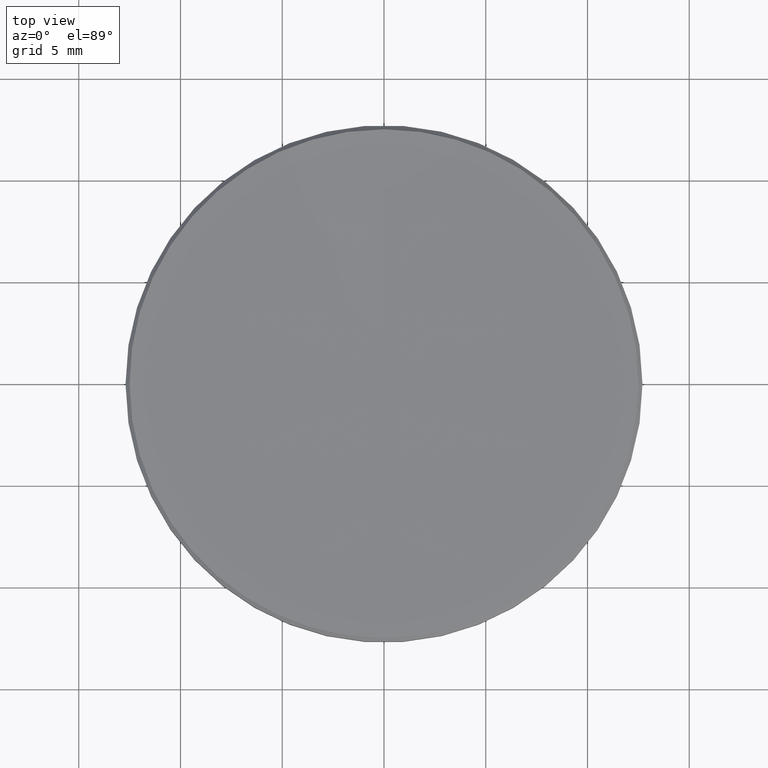
[diagram: clean part render]
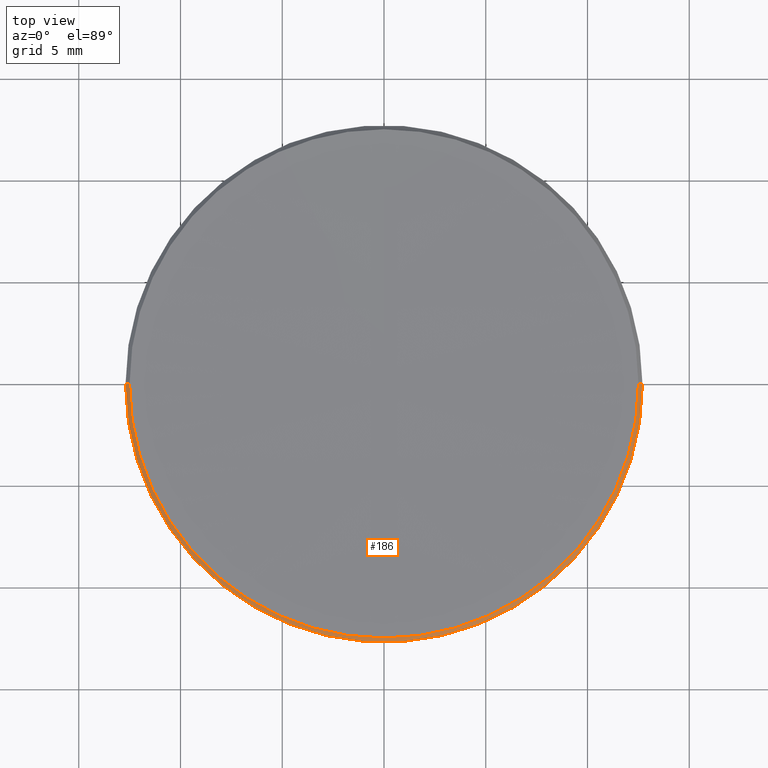
[diagram: same view with one face highlighted and labeled with its STEP entity id]
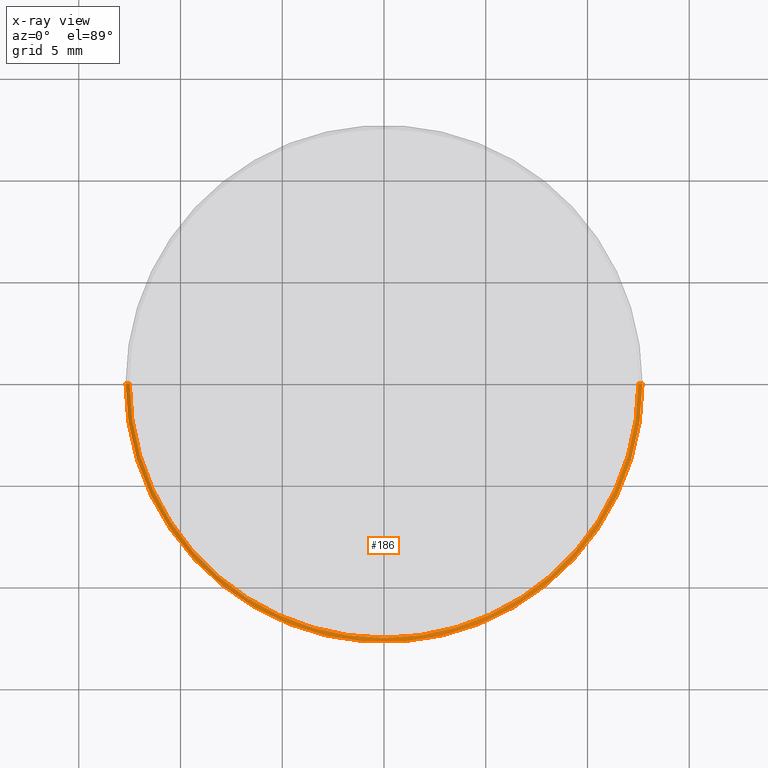
[diagram: x-ray of the same camera — body ghosted, the highlighted face saturated]
A machine part, top view. The second image highlights one B-rep face of the part: STEP entity #186.
The next image is the same camera in x-ray: the body ghosted, the highlighted face saturated — about 0% of this face is hidden behind the body in this view.
In plain terms, the highlighted conical surface has half-angle 45 deg.
Its self-contained STEP definition (entity closure, byte-faithful):
#1 = EDGE_LOOP ( 'NONE', ( #275, #233, #287, #98, #329 ) ) ;
#6 = EDGE_CURVE ( 'NONE', #70, #101, #99, .T. ) ;
#29 = AXIS2_PLACEMENT_3D ( 'NONE', #291, #39, #141 ) ;
#38 = AXIS2_PLACEMENT_3D ( 'NONE', #44, #146, #245 ) ;
#39 = DIRECTION ( 'NONE',  ( 0.000000000000000000, 0.000000000000000000, -1.000000000000000000 ) ) ;
#41 = CARTESIAN_POINT ( 'NONE',  ( -1.531023090019318822E-15, -12.50175226918713633, 5.998247730793604404 ) ) ;
#44 = CARTESIAN_POINT ( 'NONE',  ( 0.000000000000000000, 0.000000000000000000, 5.998247730793604404 ) ) ;
#54 = CARTESIAN_POINT ( 'NONE',  ( -12.69999999999999929, 0.000000000000000000, 5.800000000000471445 ) ) ;
#62 = CARTESIAN_POINT ( 'NONE',  ( 0.000000000000000000, 0.000000000000000000, 5.998247730793826449 ) ) ;
#67 = VERTEX_POINT ( 'NONE', #170 ) ;
#70 = VERTEX_POINT ( 'NONE', #165 ) ;
#78 = VERTEX_POINT ( 'NONE', #112 ) ;
#80 = EDGE_CURVE ( 'NONE', #67, #70, #288, .T. ) ;
#92 = FACE_OUTER_BOUND ( 'NONE', #1, .T. ) ;
#98 = ORIENTED_EDGE ( 'NONE', *, *, #190, .T. ) ;
#99 = CIRCLE ( 'NONE', #29, 12.69999999999999929 ) ;
#101 = VERTEX_POINT ( 'NONE', #54 ) ;
#109 = AXIS2_PLACEMENT_3D ( 'NONE', #252, #125, #120 ) ;
#112 = CARTESIAN_POINT ( 'NONE',  ( -12.50175226920632809, 0.000000000000000000, 5.998247730793604404 ) ) ;
#119 = CARTESIAN_POINT ( 'NONE',  ( -12.50175226920625349, 0.000000000000000000, 5.998247730793826449 ) ) ;
#120 = DIRECTION ( 'NONE',  ( 1.000000000000000000, 0.000000000000000000, 0.000000000000000000 ) ) ;
#125 = DIRECTION ( 'NONE',  ( -0.000000000000000000, -0.000000000000000000, 1.000000000000000000 ) ) ;
#127 = CONICAL_SURFACE ( 'NONE', #310, 12.50175226920625349, 0.7853981633984327138 ) ;
#141 = DIRECTION ( 'NONE',  ( 1.000000000000000000, 0.000000000000000000, 0.000000000000000000 ) ) ;
#146 = DIRECTION ( 'NONE',  ( -0.000000000000000000, -0.000000000000000000, 1.000000000000000000 ) ) ;
#151 = VERTEX_POINT ( 'NONE', #41 ) ;
#165 = CARTESIAN_POINT ( 'NONE',  ( 12.69999999999999929, 1.555301434917138433E-15, 5.800000000000471445 ) ) ;
#170 = CARTESIAN_POINT ( 'NONE',  ( 12.50175226920632809, 1.543162262469403636E-15, 5.998247730793604404 ) ) ;
#174 = LINE ( 'NONE', #119, #268 ) ;
#186 = ADVANCED_FACE ( 'NONE', ( #92 ), #127, .T. ) ;
#190 = EDGE_CURVE ( 'NONE', #78, #101, #174, .T. ) ;
#199 = DIRECTION ( 'NONE',  ( -0.7071067811872435716, 0.000000000000000000, -0.7071067811858515739 ) ) ;
#200 = DIRECTION ( 'NONE',  ( 0.000000000000000000, 0.000000000000000000, -1.000000000000000000 ) ) ;
#225 = VECTOR ( 'NONE', #269, 999.9999999999998863 ) ;
#226 = CIRCLE ( 'NONE', #38, 12.50175226920632809 ) ;
#233 = ORIENTED_EDGE ( 'NONE', *, *, #263, .F. ) ;
#245 = DIRECTION ( 'NONE',  ( 1.000000000000000000, 0.000000000000000000, 0.000000000000000000 ) ) ;
#252 = CARTESIAN_POINT ( 'NONE',  ( 0.000000000000000000, 0.000000000000000000, 5.998247730793604404 ) ) ;
#263 = EDGE_CURVE ( 'NONE', #151, #67, #226, .T. ) ;
#268 = VECTOR ( 'NONE', #199, 999.9999999999998863 ) ;
#269 = DIRECTION ( 'NONE',  ( 0.7071067811872435716, 8.659560562363457486E-17, -0.7071067811858515739 ) ) ;
#275 = ORIENTED_EDGE ( 'NONE', *, *, #80, .F. ) ;
#280 = EDGE_CURVE ( 'NONE', #78, #151, #305, .T. ) ;
#287 = ORIENTED_EDGE ( 'NONE', *, *, #280, .F. ) ;
#288 = LINE ( 'NONE', #292, #225 ) ;
#291 = CARTESIAN_POINT ( 'NONE',  ( 0.000000000000000000, 0.000000000000000000, 5.800000000000471445 ) ) ;
#292 = CARTESIAN_POINT ( 'NONE',  ( 12.50175226920625349, 1.531023090021659767E-15, 5.998247730793826449 ) ) ;
#296 = DIRECTION ( 'NONE',  ( -1.000000000000000000, 0.000000000000000000, 0.000000000000000000 ) ) ;
#305 = CIRCLE ( 'NONE', #109, 12.50175226920632809 ) ;
#310 = AXIS2_PLACEMENT_3D ( 'NONE', #62, #200, #296 ) ;
#329 = ORIENTED_EDGE ( 'NONE', *, *, #6, .F. ) ;